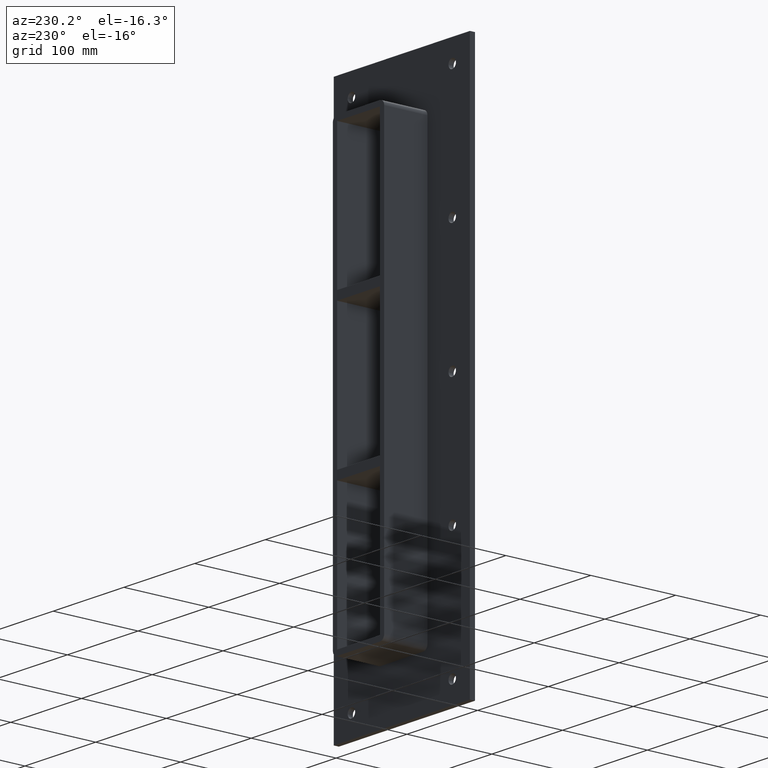
[diagram: clean part render]
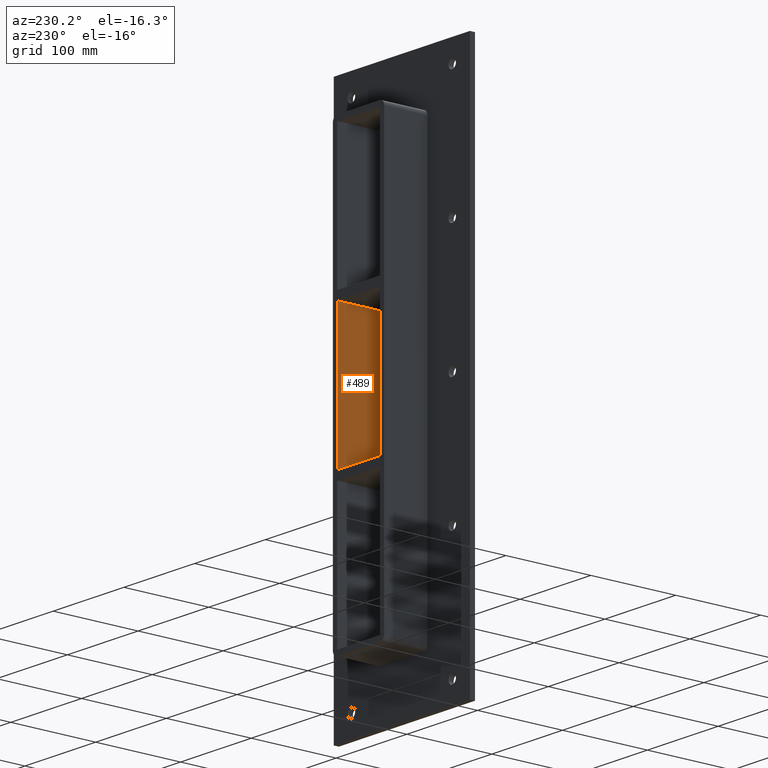
[diagram: same view with one face highlighted and labeled with its STEP entity id]
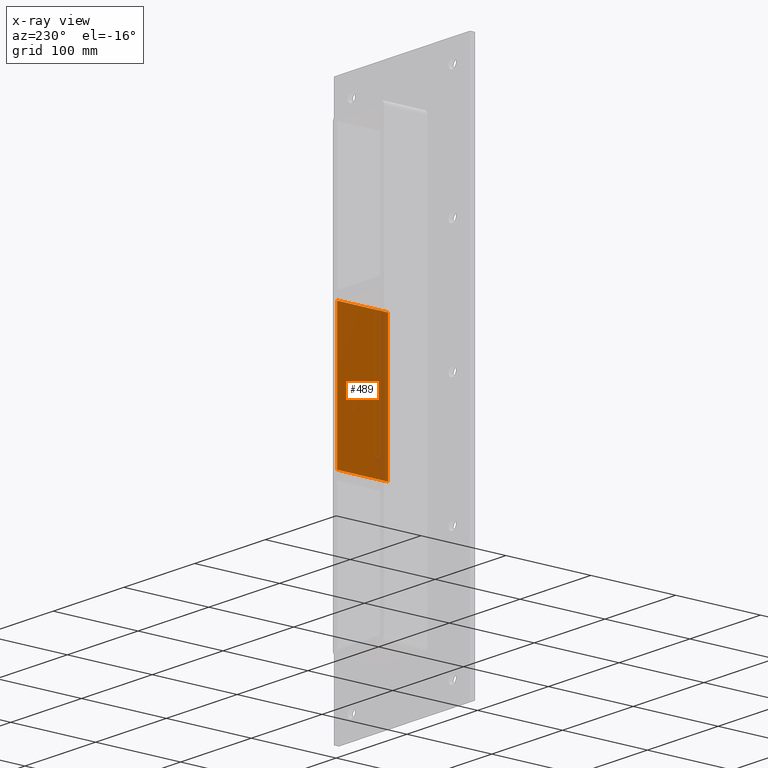
[diagram: x-ray of the same camera — body ghosted, the highlighted face saturated]
A machine part, auxiliary view. The second image highlights one B-rep face of the part: STEP entity #489.
The next image is the same camera in x-ray: the body ghosted, the highlighted face saturated — about 17% of this face is hidden behind the body in this view.
In plain terms, the highlighted planar face has unit normal (1, 0, 0).
Its self-contained STEP definition (entity closure, byte-faithful):
#353=CARTESIAN_POINT('',(30.249999999996362,-3.0,79.749999999989214));
#354=VERTEX_POINT('',#353);
#371=CARTESIAN_POINT('',(30.249999999996366,57.0,79.749999999989214));
#372=VERTEX_POINT('',#371);
#379=CARTESIAN_POINT('',(30.249999999999986,-3.0,79.749999999989228));
#380=DIRECTION('',(0.0,1.0,0.0));
#381=VECTOR('',#380,60.000000000000007);
#382=LINE('',#379,#381);
#383=EDGE_CURVE('',#354,#372,#382,.T.);
#459=CARTESIAN_POINT('',(30.249999999999986,0.0,249.25));
#460=DIRECTION('',(1.0,0.0,0.0));
#461=DIRECTION('',(0.0,0.0,-1.0));
#462=AXIS2_PLACEMENT_3D('',#459,#460,#461);
#463=PLANE('',#462);
#464=ORIENTED_EDGE('',*,*,#383,.T.);
#465=CARTESIAN_POINT('',(30.249999999999023,57.0,-79.749999999999091));
#466=VERTEX_POINT('',#465);
#467=CARTESIAN_POINT('',(30.249999999999986,57.0,-79.749999999999091));
#468=DIRECTION('',(0.0,0.0,1.0));
#469=VECTOR('',#468,159.49999999998829);
#470=LINE('',#467,#469);
#471=EDGE_CURVE('',#466,#372,#470,.T.);
#472=ORIENTED_EDGE('',*,*,#471,.F.);
#473=CARTESIAN_POINT('',(30.249999999999023,-3.0,-79.749999999999091));
#474=VERTEX_POINT('',#473);
#475=CARTESIAN_POINT('',(30.249999999999986,57.000000000000007,-79.749999999999105));
#476=DIRECTION('',(0.0,-1.0,0.0));
#477=VECTOR('',#476,60.000000000000007);
#478=LINE('',#475,#477);
#479=EDGE_CURVE('',#466,#474,#478,.T.);
#480=ORIENTED_EDGE('',*,*,#479,.T.);
#481=CARTESIAN_POINT('',(30.249999999999986,-3.0,79.749999999989214));
#482=DIRECTION('',(0.0,0.0,-1.0));
#483=VECTOR('',#482,159.49999999998829);
#484=LINE('',#481,#483);
#485=EDGE_CURVE('',#354,#474,#484,.T.);
#486=ORIENTED_EDGE('',*,*,#485,.F.);
#487=EDGE_LOOP('',(#464,#472,#480,#486));
#488=FACE_OUTER_BOUND('',#487,.T.);
#489=ADVANCED_FACE('',(#488),#463,.F.);